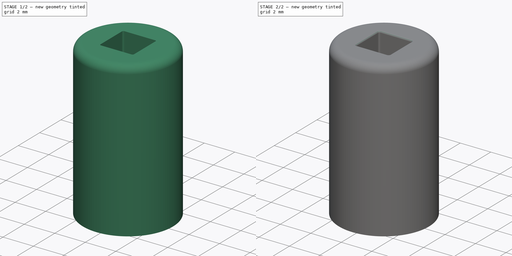
[diagram: build sequence overview — one tinted view per stage of 2, left to right]
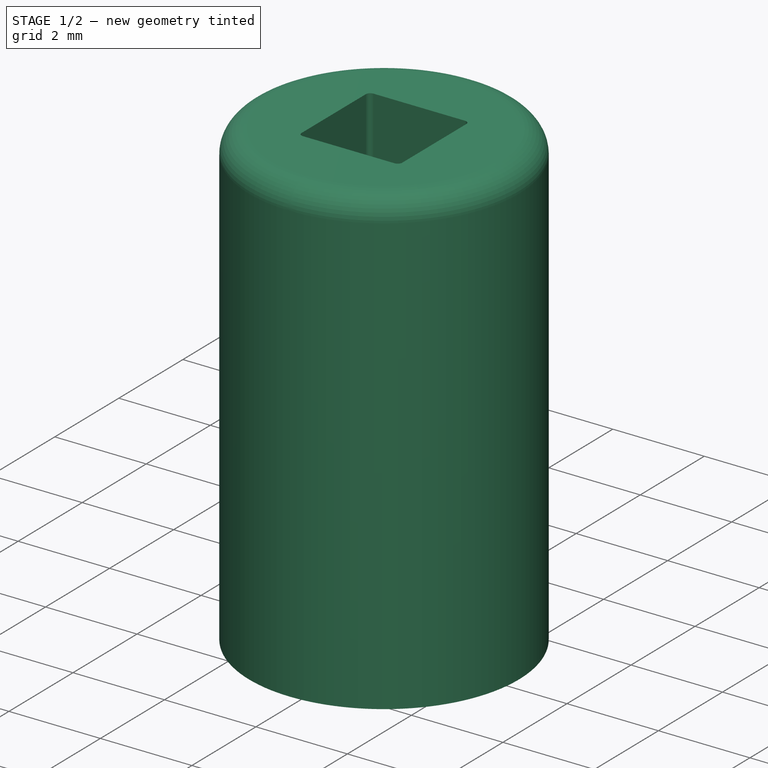
[diagram: stage 1 of 2 — iso view after this stage's code; geometry added in this stage tinted green]
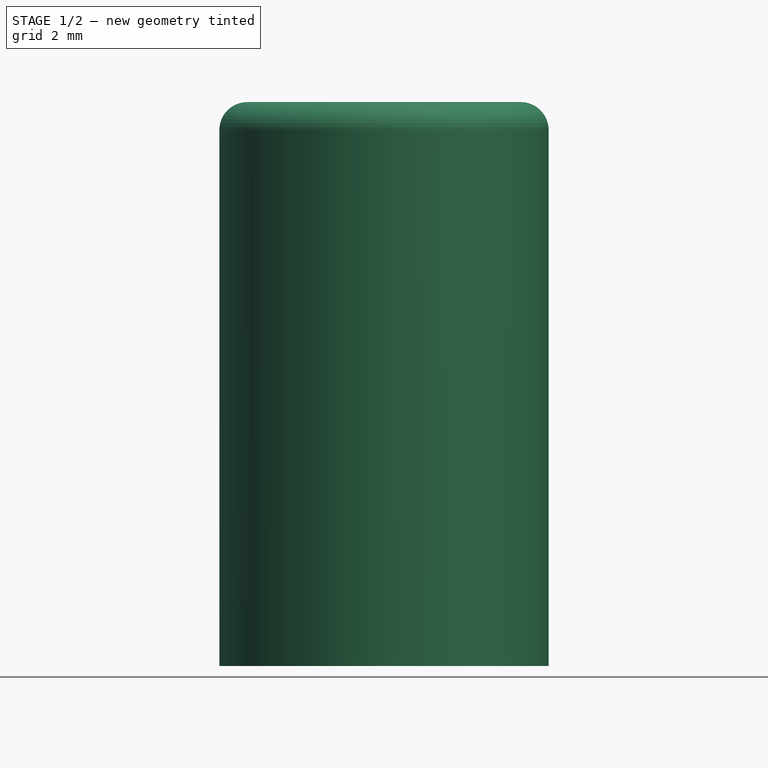
[diagram: stage 1 of 2 — front view after this stage's code; geometry added in this stage tinted green]
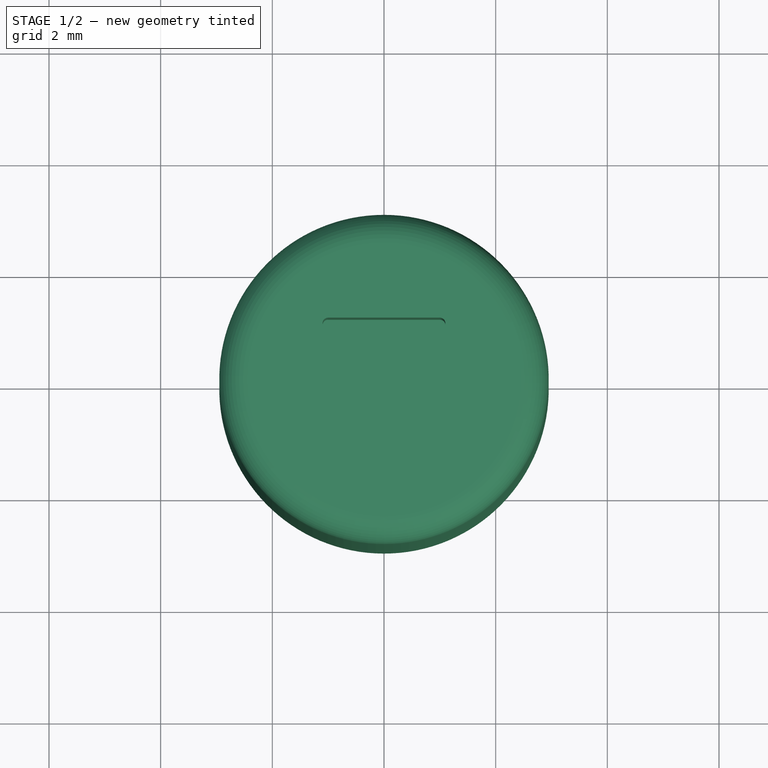
[diagram: stage 1 of 2 — top view after this stage's code; geometry added in this stage tinted green]
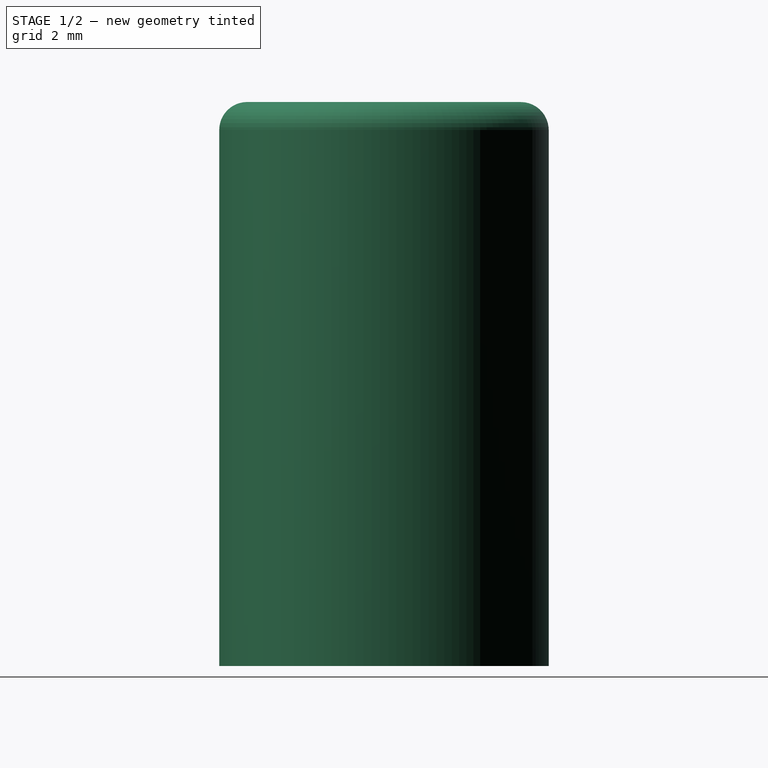
[diagram: stage 1 of 2 — right view after this stage's code; geometry added in this stage tinted green]
FCSTD DOCUMENT  (FreeCAD 0.18R16093 (Git))
Label: MagnetHolderCube
License: All rights reserved
LicenseURL: http://en.wikipedia.org/wiki/All_rights_reserved
objects: Sketcher::SketchObject×2, PartDesign::Fillet×2, PartDesign::Revolution×1, PartDesign::Pocket×1, PartDesign::Body×1
note: 9 computed .brp shape members not serialized (recipe doc carries the construction recipe); baked Part::Feature solids carry a one-line shape summary decoded from their .brp

FEATURE [Sketcher::SketchObject] Sketch
  MapMode = 5
  Placement = pos=(0,0,0) rot=(0.57735,0.57735,0.57735;2.0944rad)
  Support = -> [YZ_Plane]
  sketch-geometry (9):
    g0: LineSegment [constr] StartX=-1.95 StartY=-2 StartZ=0 EndX=-4.46469e-08 EndY=-2 EndZ=0
    g1: LineSegment StartX=-1.95 StartY=-2 StartZ=0 EndX=-1.95 EndY=0 EndZ=0
    g2: LineSegment StartX=0 StartY=8.1 StartZ=0 EndX=0 EndY=5.1 EndZ=0
    g3: LineSegment StartX=-1.95 StartY=0 StartZ=0 EndX=0 EndY=5.1 EndZ=0
    g4: LineSegment [constr] StartX=0 StartY=8.1 StartZ=0 EndX=0 EndY=8.1 EndZ=0
    g5: LineSegment StartX=0 StartY=8.1 StartZ=0 EndX=-2.45 EndY=8.1 EndZ=0
    g6: LineSegment StartX=-1.95 StartY=-2 StartZ=0 EndX=-2.95 EndY=-2 EndZ=0
    g7: LineSegment StartX=-2.95 StartY=-2 StartZ=0 EndX=-2.95 EndY=7.6 EndZ=0
    g8: ArcOfCircle CenterX=-2.45 CenterY=7.6 CenterZ=0 NormalX=0 NormalY=0 NormalZ=1 AngleXU=0 Radius=0.5 StartAngle=1.5708 EndAngle=3.14159
  constraints (26):
    c: Horizontal(g0)
    c: Coincident(g1,g0)
    c: PointOnObject(g1,g-1)
    c: Vertical(g1)
    c: PointOnObject(g0,g-2)
    c: Vertical(g2)
    c: Coincident(g3,g1)
    c: Coincident(g3,g2)
    c: Coincident(g4,g2)
    c: PointOnObject(g4,g-2)
    c: Horizontal(g4)
    c: DistanceX(g0,g0) = 1.95
    c: DistanceY(g0,g1) = 2
    c: DistanceX(g2,g4) = 0
    c: DistanceY(g2,g2) = 3
    c: DistanceY(g-1,g4) = 8.1
    c: Coincident(g5,g2)
    c: Horizontal(g5)
    c: Coincident(g6,g1)
    c: Horizontal(g6)
    c: DistanceX(g6,g1) = 1
    c: Coincident(g7,g6)
    c: Vertical(g7)
    c: Tangent(g8,g5) = -1.5708
    c: Tangent(g8,g7) = 1.5708
    c: Radius(g8) = 0.5
FEATURE [PartDesign::Revolution] Revolution
  Angle = 360
  Axis = (-2e-16,3e-16,1)
  Base = (0,0,0)
  Placement = pos=(0,0,0) rot=(0.57735,0.57735,0.57735;2.0944rad)
  Profile = -> Sketch
  ReferenceAxis = -> Sketch [V_Axis]
FEATURE [Sketcher::SketchObject] Sketch001
  MapMode = 5
  Placement = pos=(-4.5e-15,3.1e-15,8.1) rot=(0,0,-1;1.5708rad)
  Support = -> [Revolution]
  sketch-geometry (12):
    g0: LineSegment [constr] StartX=-1 StartY=1 StartZ=0 EndX=1 EndY=1 EndZ=0
    g1: LineSegment [constr] StartX=1 StartY=1 StartZ=0 EndX=1 EndY=-1 EndZ=0
    g2: LineSegment [constr] StartX=1 StartY=-1 StartZ=0 EndX=-1 EndY=-1 EndZ=0
    g3: LineSegment [constr] StartX=-1 StartY=-1 StartZ=0 EndX=-1 EndY=1 EndZ=0
    g4: ArcOfCircle CenterX=-1 CenterY=1 CenterZ=0 NormalX=0 NormalY=0 NormalZ=1 AngleXU=0 Radius=0.1 StartAngle=1.5708 EndAngle=3.14159
    g5: ArcOfCircle CenterX=1 CenterY=1 CenterZ=0 NormalX=0 NormalY=0 NormalZ=1 AngleXU=0 Radius=0.1 StartAngle=4.41307e-09 EndAngle=1.5708
    g6: ArcOfCircle CenterX=1 CenterY=-1 CenterZ=0 NormalX=0 NormalY=0 NormalZ=1 AngleXU=0 Radius=0.1 StartAngle=4.71239 EndAngle=6.28319
    g7: ArcOfCircle CenterX=-1 CenterY=-1 CenterZ=0 NormalX=0 NormalY=0 NormalZ=1 AngleXU=0 Radius=0.1 StartAngle=3.14157 EndAngle=4.71239
    g8: LineSegment StartX=-1.1 StartY=1 StartZ=0 EndX=-1.1 EndY=-0.999998 EndZ=0
    g9: LineSegment StartX=-1 StartY=-1.1 StartZ=0 EndX=1 EndY=-1.1 EndZ=0
    g10: LineSegment StartX=1.1 StartY=-1 StartZ=0 EndX=1.1 EndY=1 EndZ=0
    g11: LineSegment StartX=1 StartY=1.1 StartZ=0 EndX=-1 EndY=1.1 EndZ=0
  constraints (31):
    c: Coincident(g0,g1)
    c: Coincident(g1,g2)
    c: Coincident(g2,g3)
    c: Coincident(g3,g0)
    c: Horizontal(g0)
    c: Horizontal(g2)
    c: Vertical(g1)
    c: Vertical(g3)
    c: Symmetric(g2,g0,g-1)
    c: Equal(g0,g3)
    c: DistanceX(g0,g0) = 2
    c: Coincident(g4,g0)
    c: Coincident(g5,g0)
    c: Coincident(g6,g1)
    c: Coincident(g7,g2)
    c: Equal(g4,g5)
    c: Equal(g5,g6)
    c: Equal(g6,g7)
    c: Radius(g4) = 0.1
    c: Vertical(g8)
    c: Horizontal(g9)
    c: Vertical(g10)
    c: Coincident(g11,g5)
    c: Tangent(g11,g4) = -1.5708
    c: Horizontal(g11)
    c: Tangent(g10,g6) = -1.5708
    c: Coincident(g5,g10)
    c: Tangent(g9,g7) = -1.5708
    c: Coincident(g9,g6)
    c: Tangent(g8,g4) = -1.5708
    c: Coincident(g7,g8)
FEATURE [PartDesign::Pocket] Pocket
  BaseFeature = -> Revolution
  Length = 2.1
  Length2 = 100
  Placement = pos=(0,0,0) rot=(0.57735,0.57735,0.57735;2.0944rad)
  Profile = -> Sketch001
  Type = 0
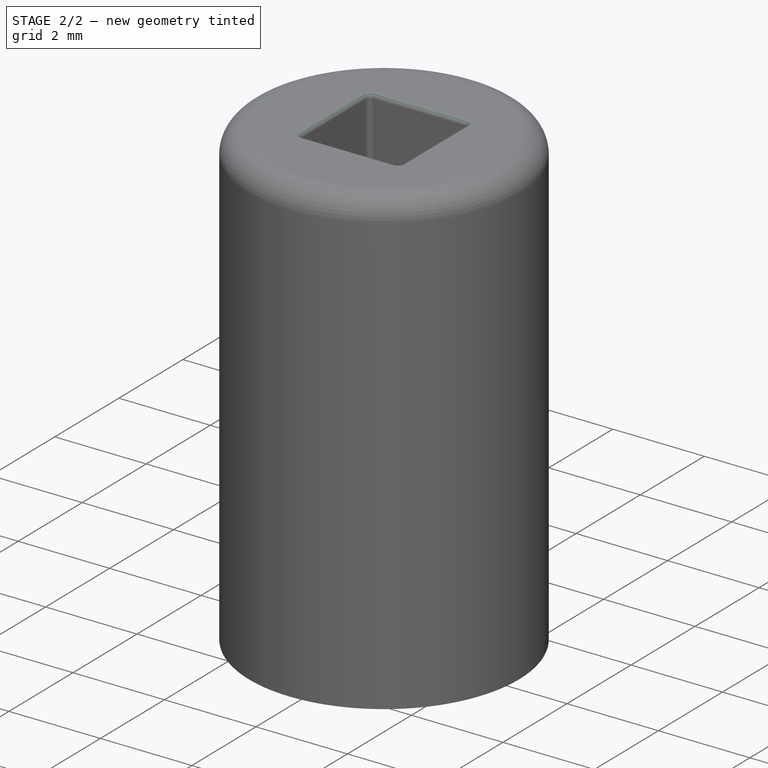
[diagram: stage 2 of 2 — iso view after this stage's code; geometry added in this stage tinted green]
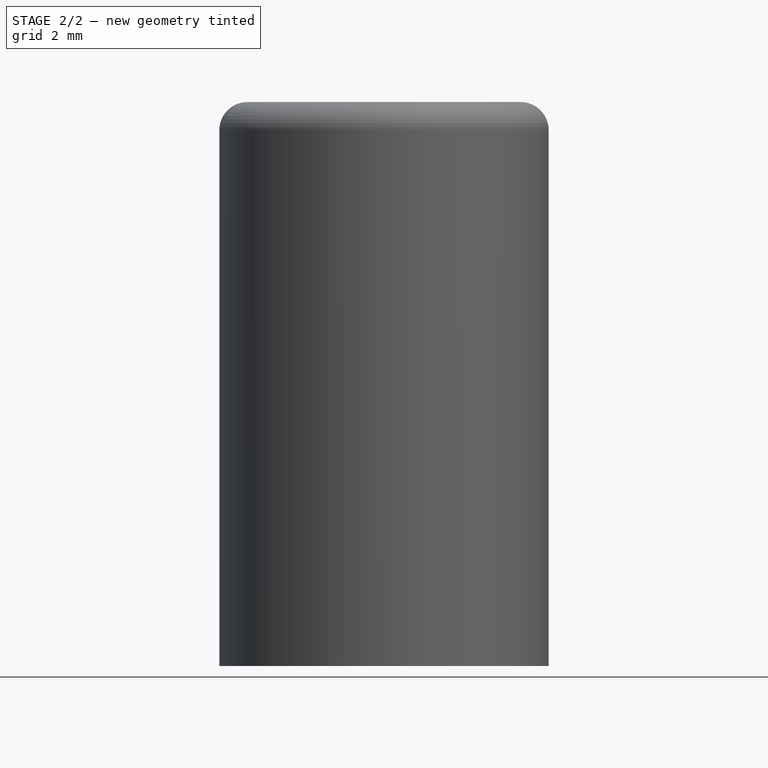
[diagram: stage 2 of 2 — front view after this stage's code; geometry added in this stage tinted green]
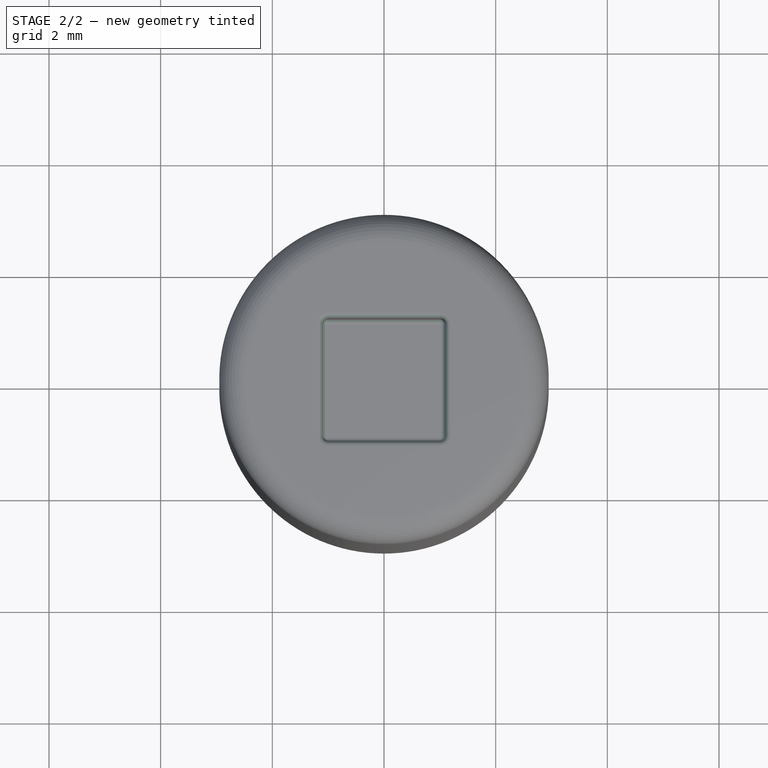
[diagram: stage 2 of 2 — top view after this stage's code; geometry added in this stage tinted green]
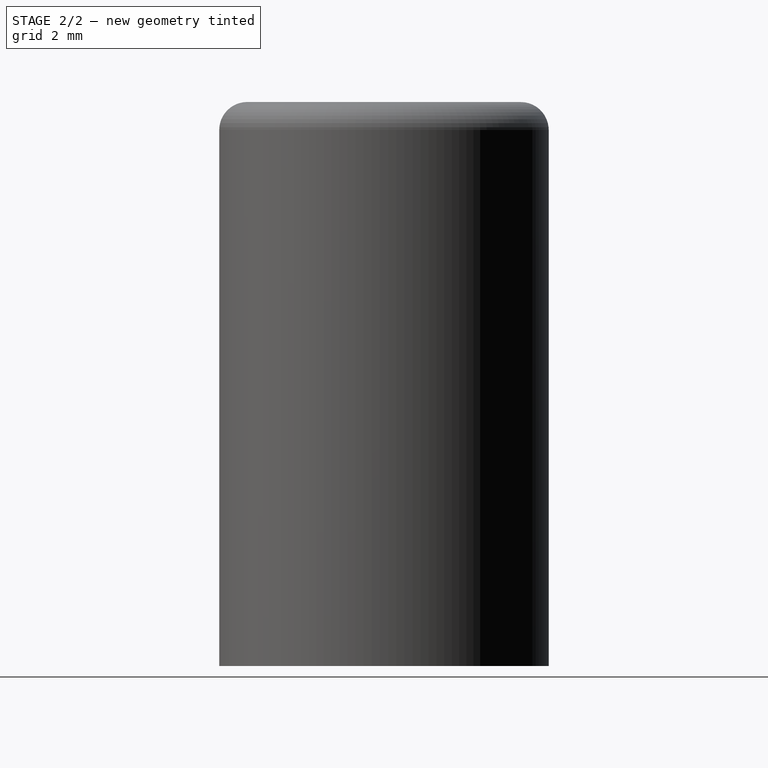
[diagram: stage 2 of 2 — right view after this stage's code; geometry added in this stage tinted green]
FEATURE [PartDesign::Fillet] Fillet
  Base = -> Pocket [Face15]
  BaseFeature = -> Pocket
  Placement = pos=(0,0,0) rot=(0.57735,0.57735,0.57735;2.0944rad)
  Radius = 0.1
FEATURE [PartDesign::Fillet] Fillet001
  Base = -> Fillet [Edge13,Edge14,Edge15,Edge17,Edge16,Edge7,Edge3,Edge12]
  BaseFeature = -> Fillet
  Placement = pos=(0,0,0) rot=(0.57735,0.57735,0.57735;2.0944rad)
  Radius = 0.1
FEATURE [PartDesign::Body] Body
  Group = -> [Sketch,Revolution,Sketch001,Pocket,Fillet,Fillet001]
  Origin = -> Origin
  Tip = -> Fillet001
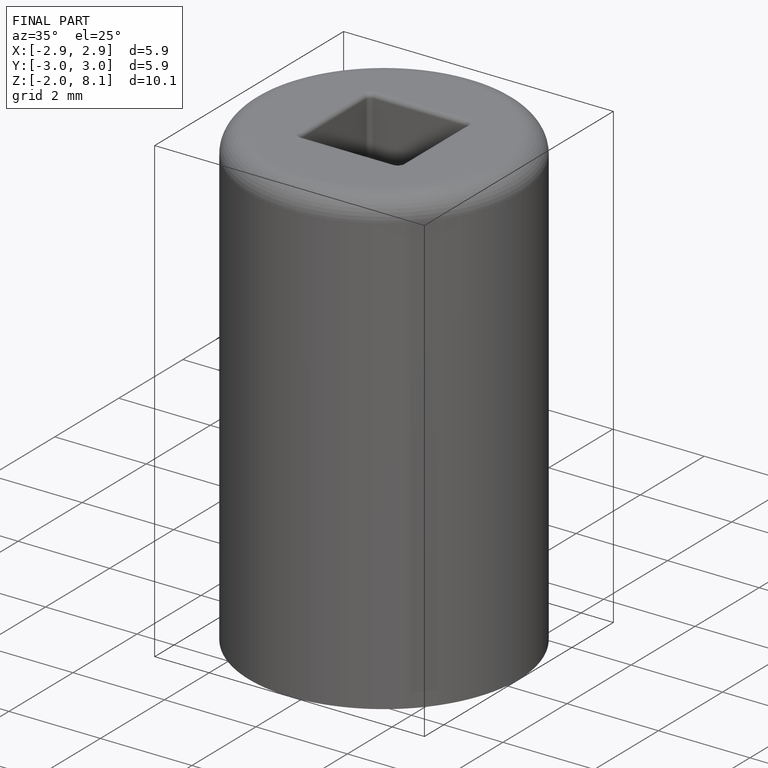
[diagram: finished part — iso view with bounding-box wireframe]
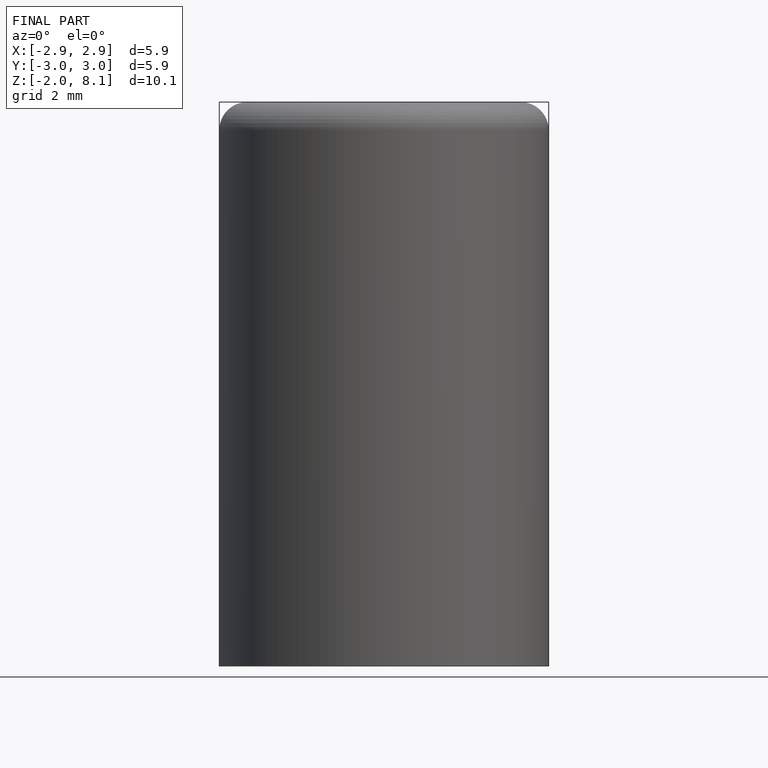
[diagram: finished part — front view with bounding-box wireframe]
